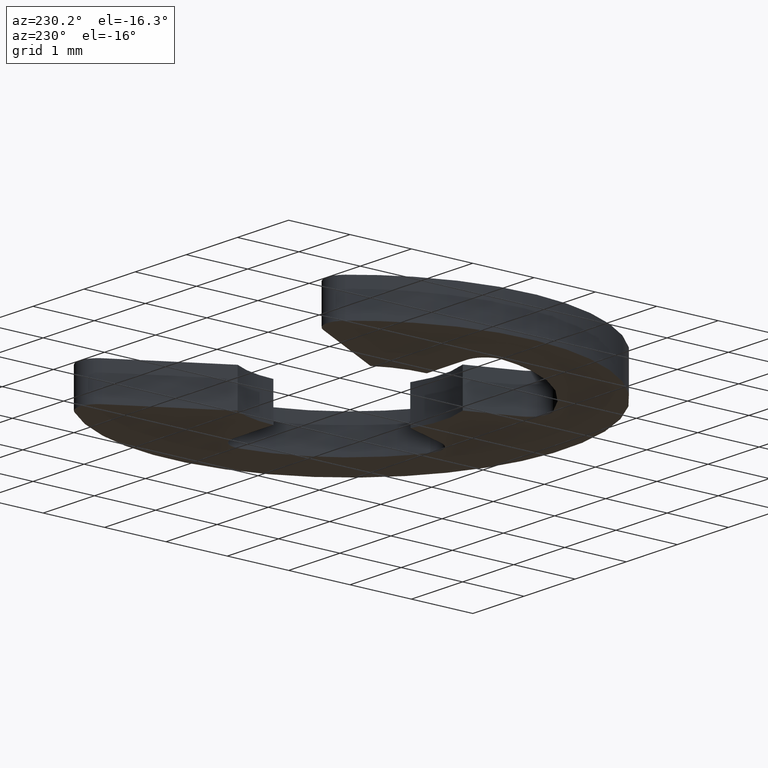
[diagram: clean part render]
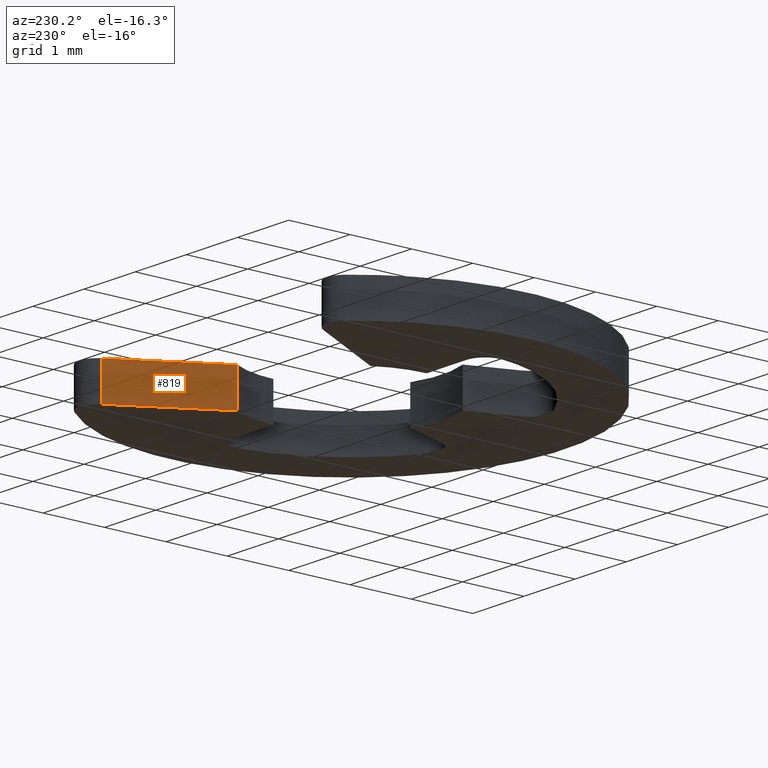
[diagram: same view with one face highlighted and labeled with its STEP entity id]
A machine part, auxiliary view. The second image highlights one B-rep face of the part: STEP entity #819.
In plain terms, the highlighted face is a freeform B-spline surface patch.
Its self-contained STEP definition (entity closure, byte-faithful):
#207=CARTESIAN_POINT('',(1.299999000000000,0.748328999999899,0.0));
#208=VERTEX_POINT('',#207);
#222=CARTESIAN_POINT('',(2.162086172043400,2.241506641774375,0.0));
#223=VERTEX_POINT('',#222);
#224=CARTESIAN_POINT('',(2.162086172043400,2.241506641774375,0.0));
#225=CARTESIAN_POINT('',(1.299999000000000,0.748328999999899,0.0));
#226=QUASI_UNIFORM_CURVE('',1,(#224,#225),.UNSPECIFIED.,.F.,.U.);
#227=EDGE_CURVE('',#223,#208,#226,.T.);
#355=CARTESIAN_POINT('',(2.162086172043400,2.241506641774375,0.599990999999855));
#356=VERTEX_POINT('',#355);
#372=CARTESIAN_POINT('',(1.299999000000000,0.748328999999899,0.599990999999855));
#373=VERTEX_POINT('',#372);
#374=CARTESIAN_POINT('',(2.162086172043400,2.241506641774375,0.599990999999855));
#375=CARTESIAN_POINT('',(1.299999000000000,0.748328999999899,0.599990999999855));
#376=QUASI_UNIFORM_CURVE('',1,(#374,#375),.UNSPECIFIED.,.F.,.U.);
#377=EDGE_CURVE('',#356,#373,#376,.T.);
#796=CARTESIAN_POINT('',(1.299999000000000,0.748328999999899,0.599990999999855));
#797=CARTESIAN_POINT('',(1.299999000000000,0.748328999999899,0.0));
#798=QUASI_UNIFORM_CURVE('',1,(#796,#797),.UNSPECIFIED.,.F.,.U.);
#799=EDGE_CURVE('',#373,#208,#798,.T.);
#804=CARTESIAN_POINT('',(1.256937775156890,0.673744744988485,-0.029969549287094));
#805=CARTESIAN_POINT('',(2.205146695140451,2.316091337539058,-0.029969549287094));
#806=CARTESIAN_POINT('',(1.256937775156890,0.673744744988485,0.629960565379962));
#807=CARTESIAN_POINT('',(2.205146695140451,2.316091337539058,0.629960565379962));
#808=B_SPLINE_SURFACE_WITH_KNOTS('',1,1,((#804,#806),(#805,#807)),.UNSPECIFIED.,.F.,.F.,.U.,(2,2),(2,2),(0.0,1.896418330959409),(0.041708334948495,0.958291687403247),.UNSPECIFIED.);
#809=ORIENTED_EDGE('',*,*,#227,.T.);
#810=ORIENTED_EDGE('',*,*,#799,.F.);
#811=ORIENTED_EDGE('',*,*,#377,.F.);
#812=CARTESIAN_POINT('',(2.162086172043400,2.241506641774375,0.599990999999855));
#813=CARTESIAN_POINT('',(2.162086172043400,2.241506641774375,0.0));
#814=QUASI_UNIFORM_CURVE('',1,(#812,#813),.UNSPECIFIED.,.F.,.U.);
#815=EDGE_CURVE('',#356,#223,#814,.T.);
#816=ORIENTED_EDGE('',*,*,#815,.T.);
#817=EDGE_LOOP('',(#809,#810,#811,#816));
#818=FACE_OUTER_BOUND('',#817,.T.);
#819=ADVANCED_FACE('',(#818),#808,.F.);